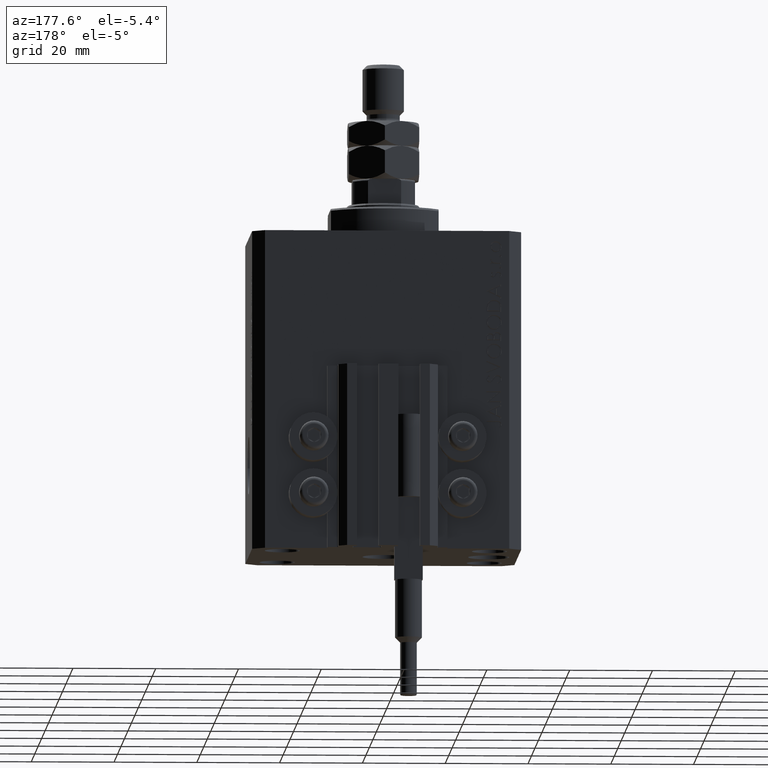
[diagram: clean part render]
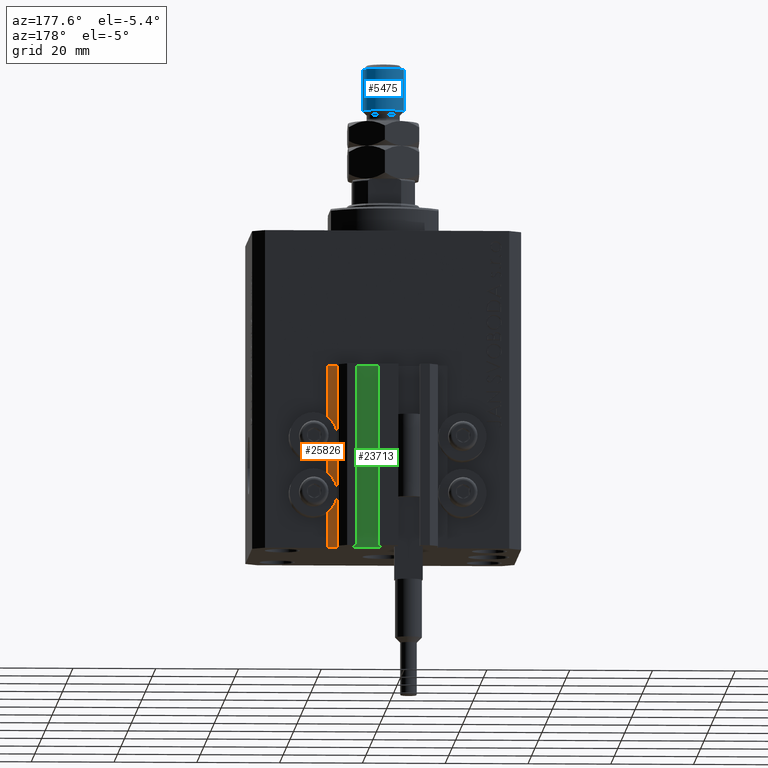
[diagram: same view with three faces highlighted in distinct colors, each labeled with its STEP entity id]
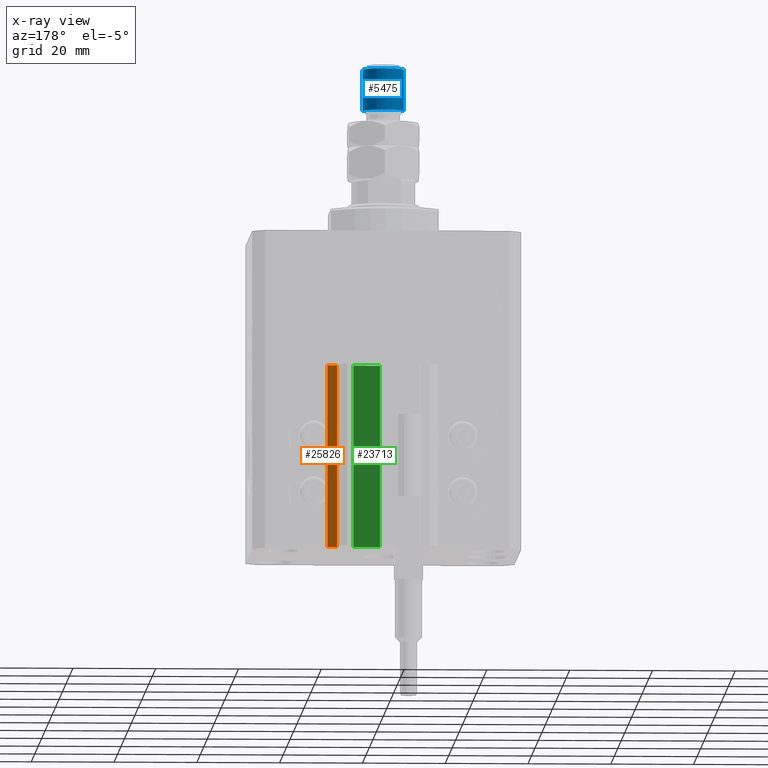
[diagram: x-ray of the same camera — body ghosted, the three highlighted faces saturated]
A machine part, auxiliary view with three faces highlighted in distinct colors.
The next image is the same camera in x-ray (body ghosted, the three faces saturated) — at least one of them is partly hidden behind the body in this view.
Their STEP definitions:

[orange] entity #25826 — the highlighted planar face has unit normal (0, 1, 0).
#2139 = VERTEX_POINT ( 'NONE', #18137 ) ;
#2721 = CARTESIAN_POINT ( 'NONE',  ( 14.49999999999999822, 24.99999999999950617, -77.00000000000000000 ) ) ;
#4005 = CARTESIAN_POINT ( 'NONE',  ( 14.49999999999999822, 24.99999999999950617, -77.00000000000000000 ) ) ;
#4978 = EDGE_CURVE ( 'NONE', #23903, #32542, #38511, .T. ) ;
#4996 = FACE_OUTER_BOUND ( 'NONE', #42195, .T. ) ;
#7389 = CARTESIAN_POINT ( 'NONE',  ( 14.49999999999999822, 24.99999999999950617, -33.00000000000000000 ) ) ;
#8241 = CARTESIAN_POINT ( 'NONE',  ( 14.49999999999999822, 24.99999999999950617, -77.00000000000000000 ) ) ;
#12185 = LINE ( 'NONE', #31562, #31445 ) ;
#12553 = DIRECTION ( 'NONE',  ( 0.000000000000000000, 0.000000000000000000, 1.000000000000000000 ) ) ;
#12710 = ORIENTED_EDGE ( 'NONE', *, *, #17999, .T. ) ;
#12794 = CARTESIAN_POINT ( 'NONE',  ( 14.49999999999999822, 24.99999999999950617, -77.00000000000000000 ) ) ;
#15422 = EDGE_CURVE ( 'NONE', #23903, #2139, #29179, .T. ) ;
#15840 = DIRECTION ( 'NONE',  ( 0.000000000000000000, 0.000000000000000000, 1.000000000000000000 ) ) ;
#16066 = PLANE ( 'NONE',  #40407 ) ;
#16345 = LINE ( 'NONE', #39016, #22534 ) ;
#17941 = ORIENTED_EDGE ( 'NONE', *, *, #15422, .T. ) ;
#17999 = EDGE_CURVE ( 'NONE', #2139, #48558, #16345, .T. ) ;
#18137 = CARTESIAN_POINT ( 'NONE',  ( 12.20000000000000284, 24.99999999999950617, -77.00000000000000000 ) ) ;
#18388 = VECTOR ( 'NONE', #45034, 1000.000000000000000 ) ;
#22534 = VECTOR ( 'NONE', #15840, 1000.000000000000000 ) ;
#23903 = VERTEX_POINT ( 'NONE', #8241 ) ;
#25826 = ADVANCED_FACE ( 'NONE', ( #4996 ), #16066, .T. ) ;
#28810 = EDGE_CURVE ( 'NONE', #32542, #48558, #12185, .T. ) ;
#29179 = LINE ( 'NONE', #2721, #18388 ) ;
#31056 = DIRECTION ( 'NONE',  ( -1.000000000000000000, 0.000000000000000000, 0.000000000000000000 ) ) ;
#31445 = VECTOR ( 'NONE', #31056, 1000.000000000000000 ) ;
#31447 = DIRECTION ( 'NONE',  ( 0.000000000000000000, 0.000000000000000000, 1.000000000000000000 ) ) ;
#31562 = CARTESIAN_POINT ( 'NONE',  ( 14.49999999999999822, 24.99999999999950617, -33.00000000000000000 ) ) ;
#32542 = VERTEX_POINT ( 'NONE', #7389 ) ;
#35213 = DIRECTION ( 'NONE',  ( 0.000000000000000000, 1.000000000000000000, -0.000000000000000000 ) ) ;
#38511 = LINE ( 'NONE', #4005, #47155 ) ;
#39016 = CARTESIAN_POINT ( 'NONE',  ( 12.20000000000000284, 24.99999999999950617, -77.00000000000000000 ) ) ;
#40407 = AXIS2_PLACEMENT_3D ( 'NONE', #12794, #35213, #12553 ) ;
#42195 = EDGE_LOOP ( 'NONE', ( #45979, #45928, #17941, #12710 ) ) ;
#45034 = DIRECTION ( 'NONE',  ( -1.000000000000000000, 0.000000000000000000, 0.000000000000000000 ) ) ;
#45643 = CARTESIAN_POINT ( 'NONE',  ( 12.20000000000000284, 24.99999999999950617, -33.00000000000000000 ) ) ;
#45928 = ORIENTED_EDGE ( 'NONE', *, *, #4978, .F. ) ;
#45979 = ORIENTED_EDGE ( 'NONE', *, *, #28810, .F. ) ;
#47155 = VECTOR ( 'NONE', #31447, 1000.000000000000000 ) ;
#48558 = VERTEX_POINT ( 'NONE', #45643 ) ;

[blue] entity #5475 — the highlighted cylindrical surface (edge-blend (fillet) strip) has radius 5 mm, axis along (-0, -0, -1).
#155 = VERTEX_POINT ( 'NONE', #8549 ) ;
#378 = DIRECTION ( 'NONE',  ( -1.000000000000000000, 0.000000000000000000, 0.000000000000000000 ) ) ;
#1816 = EDGE_CURVE ( 'NONE', #49747, #35966, #25771, .T. ) ;
#2997 = VECTOR ( 'NONE', #40851, 1000.000000000000000 ) ;
#4023 = ORIENTED_EDGE ( 'NONE', *, *, #14800, .T. ) ;
#5475 = ADVANCED_FACE ( 'NONE', ( #46471 ), #19749, .T. ) ;
#8549 = CARTESIAN_POINT ( 'NONE',  ( -5.000000000000000000, 0.000000000000000000, 26.99999999999998934 ) ) ;
#8724 = AXIS2_PLACEMENT_3D ( 'NONE', #33368, #30321, #45215 ) ;
#10726 = EDGE_CURVE ( 'NONE', #35966, #25261, #24681, .T. ) ;
#12650 = EDGE_CURVE ( 'NONE', #155, #25261, #21449, .T. ) ;
#14800 = EDGE_CURVE ( 'NONE', #155, #49747, #45713, .T. ) ;
#15439 = ORIENTED_EDGE ( 'NONE', *, *, #1816, .T. ) ;
#15974 = DIRECTION ( 'NONE',  ( -0.000000000000000000, -0.000000000000000000, -1.000000000000000000 ) ) ;
#16595 = AXIS2_PLACEMENT_3D ( 'NONE', #39911, #15974, #378 ) ;
#18848 = VECTOR ( 'NONE', #44693, 1000.000000000000000 ) ;
#19749 = CYLINDRICAL_SURFACE ( 'NONE', #16595, 5.000000000000000000 ) ;
#20329 = CARTESIAN_POINT ( 'NONE',  ( 5.000000000000000000, 6.123233995736766282E-16, 17.00000000000000355 ) ) ;
#21449 = LINE ( 'NONE', #33771, #2997 ) ;
#24681 = CIRCLE ( 'NONE', #44829, 5.000000000000000000 ) ;
#25261 = VERTEX_POINT ( 'NONE', #32796 ) ;
#25771 = LINE ( 'NONE', #48481, #18848 ) ;
#29989 = ORIENTED_EDGE ( 'NONE', *, *, #12650, .F. ) ;
#30321 = DIRECTION ( 'NONE',  ( 0.000000000000000000, 0.000000000000000000, -1.000000000000000000 ) ) ;
#32796 = CARTESIAN_POINT ( 'NONE',  ( -5.000000000000000000, 0.000000000000000000, 17.00000000000000355 ) ) ;
#33368 = CARTESIAN_POINT ( 'NONE',  ( 0.000000000000000000, 0.000000000000000000, 26.99999999999998934 ) ) ;
#33771 = CARTESIAN_POINT ( 'NONE',  ( -5.000000000000000000, 0.000000000000000000, 28.00000000000000000 ) ) ;
#34152 = EDGE_LOOP ( 'NONE', ( #4023, #15439, #49809, #29989 ) ) ;
#34303 = CARTESIAN_POINT ( 'NONE',  ( 5.000000000000000000, 6.123233995736766282E-16, 26.99999999999998934 ) ) ;
#35966 = VERTEX_POINT ( 'NONE', #20329 ) ;
#36758 = DIRECTION ( 'NONE',  ( 1.000000000000000000, 0.000000000000000000, 0.000000000000000000 ) ) ;
#39911 = CARTESIAN_POINT ( 'NONE',  ( 0.000000000000000000, 0.000000000000000000, 28.00000000000000000 ) ) ;
#40851 = DIRECTION ( 'NONE',  ( -0.000000000000000000, -0.000000000000000000, -1.000000000000000000 ) ) ;
#43828 = CARTESIAN_POINT ( 'NONE',  ( 0.000000000000000000, 0.000000000000000000, 17.00000000000000355 ) ) ;
#44074 = DIRECTION ( 'NONE',  ( -0.000000000000000000, -0.000000000000000000, 1.000000000000000000 ) ) ;
#44693 = DIRECTION ( 'NONE',  ( -0.000000000000000000, -0.000000000000000000, -1.000000000000000000 ) ) ;
#44829 = AXIS2_PLACEMENT_3D ( 'NONE', #43828, #44074, #36758 ) ;
#45215 = DIRECTION ( 'NONE',  ( 1.000000000000000000, 0.000000000000000000, 0.000000000000000000 ) ) ;
#45713 = CIRCLE ( 'NONE', #8724, 5.000000000000000000 ) ;
#46471 = FACE_OUTER_BOUND ( 'NONE', #34152, .T. ) ;
#48481 = CARTESIAN_POINT ( 'NONE',  ( 5.000000000000000000, 6.123233995736766282E-16, 28.00000000000000000 ) ) ;
#49747 = VERTEX_POINT ( 'NONE', #34303 ) ;
#49809 = ORIENTED_EDGE ( 'NONE', *, *, #10726, .T. ) ;

[green] entity #23713 — the highlighted planar face has unit normal (0, 1, 0).
#1686 = EDGE_LOOP ( 'NONE', ( #47992, #33029, #9807, #9714 ) ) ;
#3645 = DIRECTION ( 'NONE',  ( -1.000000000000000000, 0.000000000000000000, 0.000000000000000000 ) ) ;
#3903 = VERTEX_POINT ( 'NONE', #27472 ) ;
#7313 = AXIS2_PLACEMENT_3D ( 'NONE', #24639, #17328, #29407 ) ;
#7552 = CARTESIAN_POINT ( 'NONE',  ( 8.200000000000001066, 24.49999999999949196, -77.00000000000000000 ) ) ;
#9532 = PLANE ( 'NONE',  #7313 ) ;
#9714 = ORIENTED_EDGE ( 'NONE', *, *, #19447, .T. ) ;
#9807 = ORIENTED_EDGE ( 'NONE', *, *, #47969, .T. ) ;
#11291 = VECTOR ( 'NONE', #24398, 1000.000000000000000 ) ;
#13560 = FACE_OUTER_BOUND ( 'NONE', #1686, .T. ) ;
#13656 = CARTESIAN_POINT ( 'NONE',  ( 1.800000000000000933, 24.49999999999949196, -77.00000000000000000 ) ) ;
#15717 = EDGE_CURVE ( 'NONE', #39609, #3903, #22025, .T. ) ;
#16834 = VECTOR ( 'NONE', #25411, 1000.000000000000000 ) ;
#17201 = CARTESIAN_POINT ( 'NONE',  ( 8.200000000000001066, 24.49999999999949196, -33.00000000000000000 ) ) ;
#17328 = DIRECTION ( 'NONE',  ( 0.000000000000000000, 1.000000000000000000, -0.000000000000000000 ) ) ;
#18328 = CARTESIAN_POINT ( 'NONE',  ( 1.800000000000000933, 24.49999999999949196, -77.00000000000000000 ) ) ;
#19447 = EDGE_CURVE ( 'NONE', #25278, #3903, #41279, .T. ) ;
#22025 = LINE ( 'NONE', #45463, #49772 ) ;
#23713 = ADVANCED_FACE ( 'NONE', ( #13560 ), #9532, .T. ) ;
#24398 = DIRECTION ( 'NONE',  ( 0.000000000000000000, 0.000000000000000000, 1.000000000000000000 ) ) ;
#24639 = CARTESIAN_POINT ( 'NONE',  ( 8.200000000000001066, 24.49999999999949196, -77.00000000000000000 ) ) ;
#24888 = LINE ( 'NONE', #29177, #11291 ) ;
#25278 = VERTEX_POINT ( 'NONE', #13656 ) ;
#25411 = DIRECTION ( 'NONE',  ( 0.000000000000000000, 0.000000000000000000, 1.000000000000000000 ) ) ;
#27472 = CARTESIAN_POINT ( 'NONE',  ( 1.800000000000000933, 24.49999999999949196, -33.00000000000000000 ) ) ;
#29177 = CARTESIAN_POINT ( 'NONE',  ( 8.200000000000001066, 24.49999999999949196, -77.00000000000000000 ) ) ;
#29407 = DIRECTION ( 'NONE',  ( 0.000000000000000000, 0.000000000000000000, 1.000000000000000000 ) ) ;
#32451 = CARTESIAN_POINT ( 'NONE',  ( 8.200000000000001066, 24.49999999999949196, -77.00000000000000000 ) ) ;
#33029 = ORIENTED_EDGE ( 'NONE', *, *, #45701, .F. ) ;
#36965 = LINE ( 'NONE', #32451, #41882 ) ;
#39609 = VERTEX_POINT ( 'NONE', #17201 ) ;
#41279 = LINE ( 'NONE', #18328, #16834 ) ;
#41882 = VECTOR ( 'NONE', #44297, 1000.000000000000000 ) ;
#44297 = DIRECTION ( 'NONE',  ( -1.000000000000000000, 0.000000000000000000, 0.000000000000000000 ) ) ;
#45427 = VERTEX_POINT ( 'NONE', #7552 ) ;
#45463 = CARTESIAN_POINT ( 'NONE',  ( 8.200000000000001066, 24.49999999999949196, -33.00000000000000000 ) ) ;
#45701 = EDGE_CURVE ( 'NONE', #45427, #39609, #24888, .T. ) ;
#47969 = EDGE_CURVE ( 'NONE', #45427, #25278, #36965, .T. ) ;
#47992 = ORIENTED_EDGE ( 'NONE', *, *, #15717, .F. ) ;
#49772 = VECTOR ( 'NONE', #3645, 1000.000000000000000 ) ;